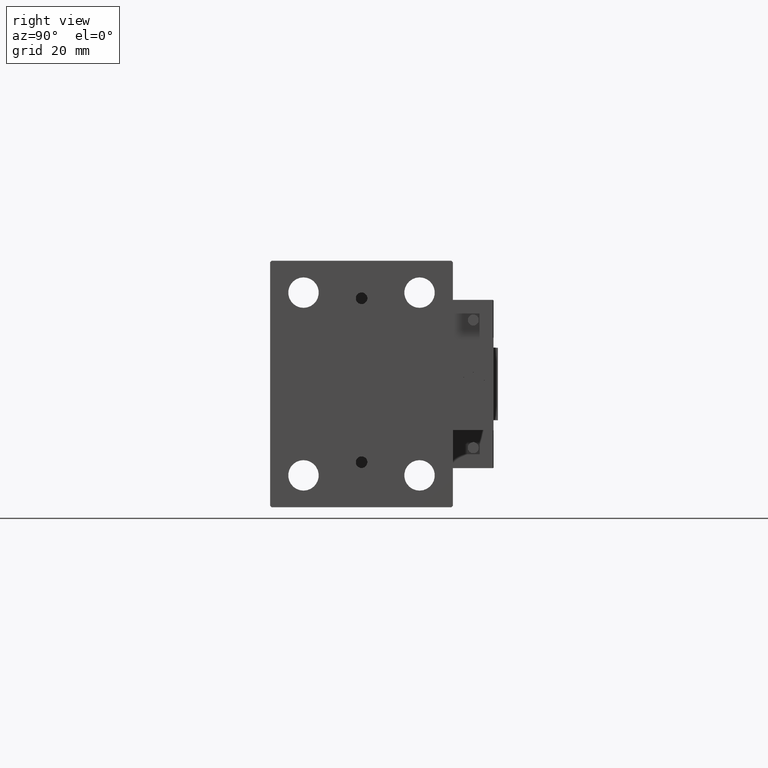
[diagram: clean part render]
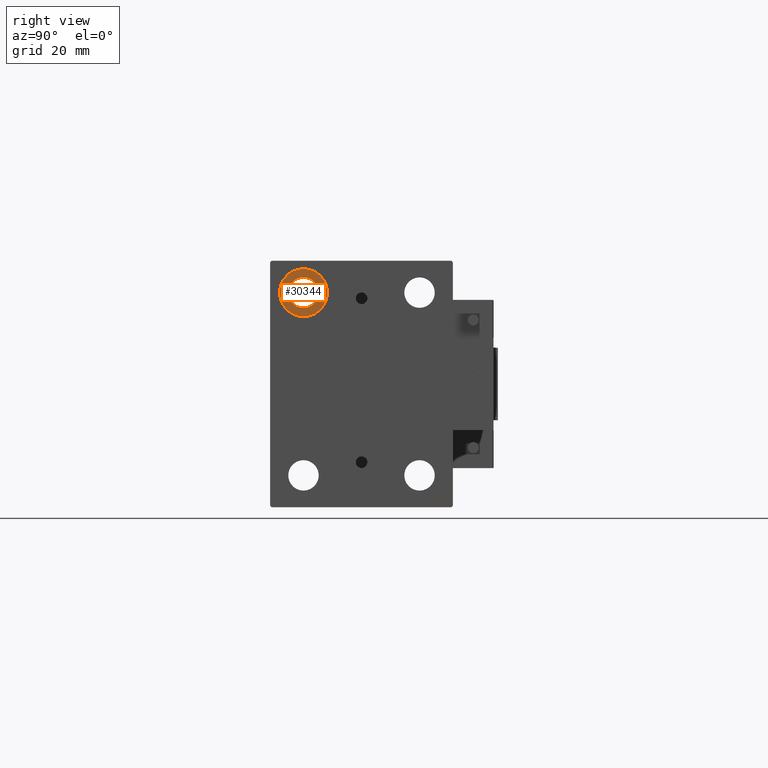
[diagram: same view with one face highlighted and labeled with its STEP entity id]
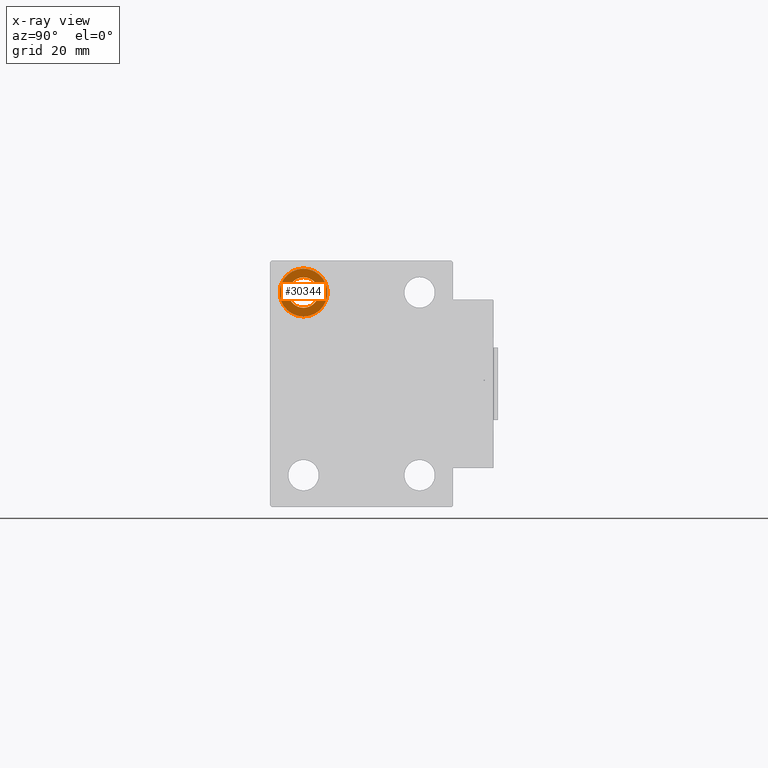
[diagram: x-ray of the same camera — body ghosted, the highlighted face saturated]
A machine part, right view. The second image highlights one B-rep face of the part: STEP entity #30344.
The next image is the same camera in x-ray: the body ghosted, the highlighted face saturated — about 0% of this face is hidden behind the body in this view.
In plain terms, the highlighted planar face has unit normal (1, 0, 0).
Its self-contained STEP definition (entity closure, byte-faithful):
#159 = EDGE_CURVE ( 'NONE', #4341, #51581, #48821, .T. ) ;
#1320 = EDGE_LOOP ( 'NONE', ( #47532, #1654 ) ) ;
#1654 = ORIENTED_EDGE ( 'NONE', *, *, #159, .T. ) ;
#4341 = VERTEX_POINT ( 'NONE', #19906 ) ;
#5662 = CARTESIAN_POINT ( 'NONE',  ( 112.0000000000000000, -19.99999999999999645, 36.75000000000000000 ) ) ;
#5668 = CARTESIAN_POINT ( 'NONE',  ( 112.0000000000000000, -19.99999999999999645, 31.50000000000000000 ) ) ;
#6202 = DIRECTION ( 'NONE',  ( 0.000000000000000000, 0.000000000000000000, -1.000000000000000000 ) ) ;
#8404 = CARTESIAN_POINT ( 'NONE',  ( 112.0000000000000000, -19.99999999999999645, 23.25000000000000355 ) ) ;
#8857 = CARTESIAN_POINT ( 'NONE',  ( 112.0000000000000000, -19.99999999999999645, 31.50000000000000000 ) ) ;
#10795 = FACE_OUTER_BOUND ( 'NONE', #10838, .T. ) ;
#10838 = EDGE_LOOP ( 'NONE', ( #37080, #11513 ) ) ;
#11513 = ORIENTED_EDGE ( 'NONE', *, *, #17123, .F. ) ;
#12077 = AXIS2_PLACEMENT_3D ( 'NONE', #25309, #17994, #6202 ) ;
#12816 = DIRECTION ( 'NONE',  ( 0.000000000000000000, 0.000000000000000000, -1.000000000000000000 ) ) ;
#16748 = EDGE_CURVE ( 'NONE', #51581, #4341, #41130, .T. ) ;
#17123 = EDGE_CURVE ( 'NONE', #28371, #32466, #19459, .T. ) ;
#17994 = DIRECTION ( 'NONE',  ( -1.000000000000000000, -0.000000000000000000, -0.000000000000000000 ) ) ;
#18146 = CARTESIAN_POINT ( 'NONE',  ( 112.0000000000000000, 0.000000000000000000, 0.000000000000000000 ) ) ;
#18588 = AXIS2_PLACEMENT_3D ( 'NONE', #44486, #40551, #12816 ) ;
#18656 = DIRECTION ( 'NONE',  ( 1.000000000000000000, 0.000000000000000000, -0.000000000000000000 ) ) ;
#19459 = CIRCLE ( 'NONE', #41169, 8.249999999999992895 ) ;
#19906 = CARTESIAN_POINT ( 'NONE',  ( 112.0000000000000000, -19.99999999999999645, 26.25000000000000355 ) ) ;
#22673 = DIRECTION ( 'NONE',  ( -1.000000000000000000, -0.000000000000000000, -0.000000000000000000 ) ) ;
#25309 = CARTESIAN_POINT ( 'NONE',  ( 112.0000000000000000, -19.99999999999999645, 31.50000000000000000 ) ) ;
#25323 = DIRECTION ( 'NONE',  ( -1.000000000000000000, -0.000000000000000000, -0.000000000000000000 ) ) ;
#28065 = AXIS2_PLACEMENT_3D ( 'NONE', #18146, #18656, #50316 ) ;
#28371 = VERTEX_POINT ( 'NONE', #36975 ) ;
#29250 = DIRECTION ( 'NONE',  ( 0.000000000000000000, 0.000000000000000000, 1.000000000000000000 ) ) ;
#30344 = ADVANCED_FACE ( 'NONE', ( #10795, #46644 ), #30942, .T. ) ;
#30942 = PLANE ( 'NONE',  #28065 ) ;
#32466 = VERTEX_POINT ( 'NONE', #8404 ) ;
#36975 = CARTESIAN_POINT ( 'NONE',  ( 112.0000000000000000, -19.99999999999999645, 39.74999999999999289 ) ) ;
#37080 = ORIENTED_EDGE ( 'NONE', *, *, #45751, .F. ) ;
#39093 = CIRCLE ( 'NONE', #40727, 8.249999999999992895 ) ;
#40551 = DIRECTION ( 'NONE',  ( -1.000000000000000000, -0.000000000000000000, -0.000000000000000000 ) ) ;
#40727 = AXIS2_PLACEMENT_3D ( 'NONE', #8857, #25323, #29250 ) ;
#41130 = CIRCLE ( 'NONE', #18588, 5.249999999999997335 ) ;
#41169 = AXIS2_PLACEMENT_3D ( 'NONE', #5668, #22673, #41789 ) ;
#41789 = DIRECTION ( 'NONE',  ( 0.000000000000000000, 0.000000000000000000, 1.000000000000000000 ) ) ;
#44486 = CARTESIAN_POINT ( 'NONE',  ( 112.0000000000000000, -19.99999999999999645, 31.50000000000000000 ) ) ;
#45751 = EDGE_CURVE ( 'NONE', #32466, #28371, #39093, .T. ) ;
#46644 = FACE_BOUND ( 'NONE', #1320, .T. ) ;
#47532 = ORIENTED_EDGE ( 'NONE', *, *, #16748, .T. ) ;
#48821 = CIRCLE ( 'NONE', #12077, 5.249999999999997335 ) ;
#50316 = DIRECTION ( 'NONE',  ( 0.000000000000000000, 0.000000000000000000, 1.000000000000000000 ) ) ;
#51581 = VERTEX_POINT ( 'NONE', #5662 ) ;